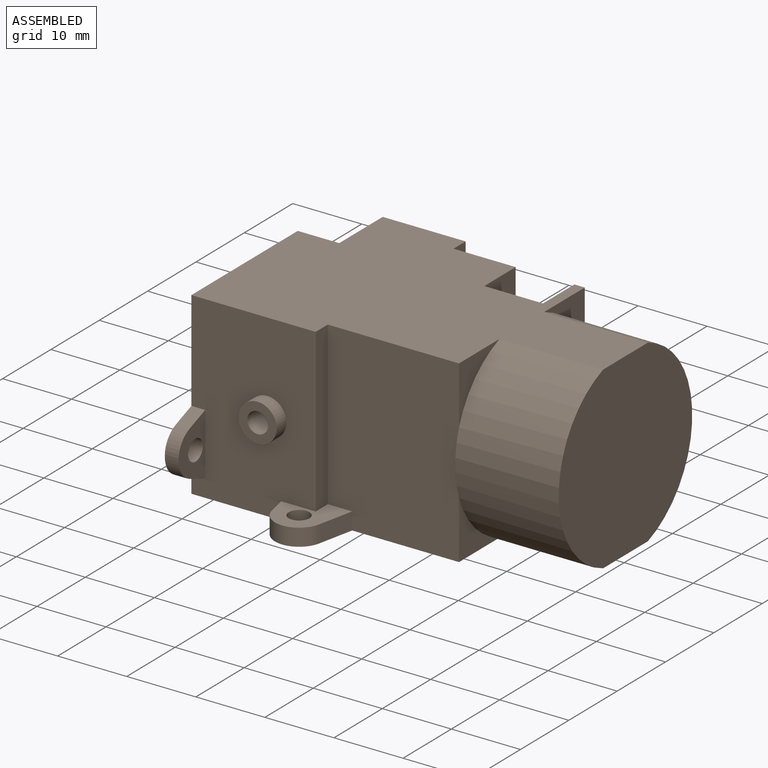
[diagram: assembled view]
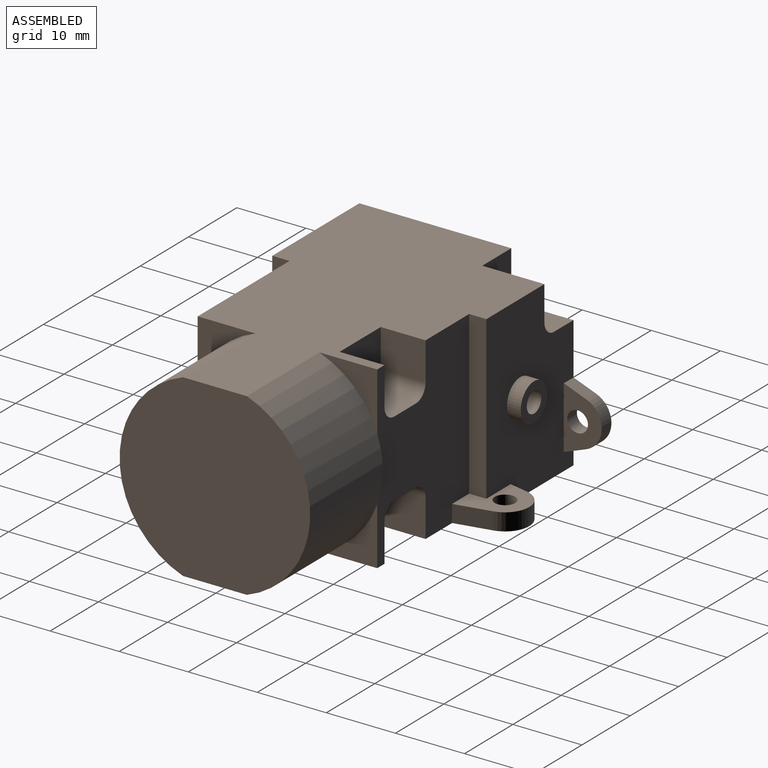
[diagram: assembled view, second angle]
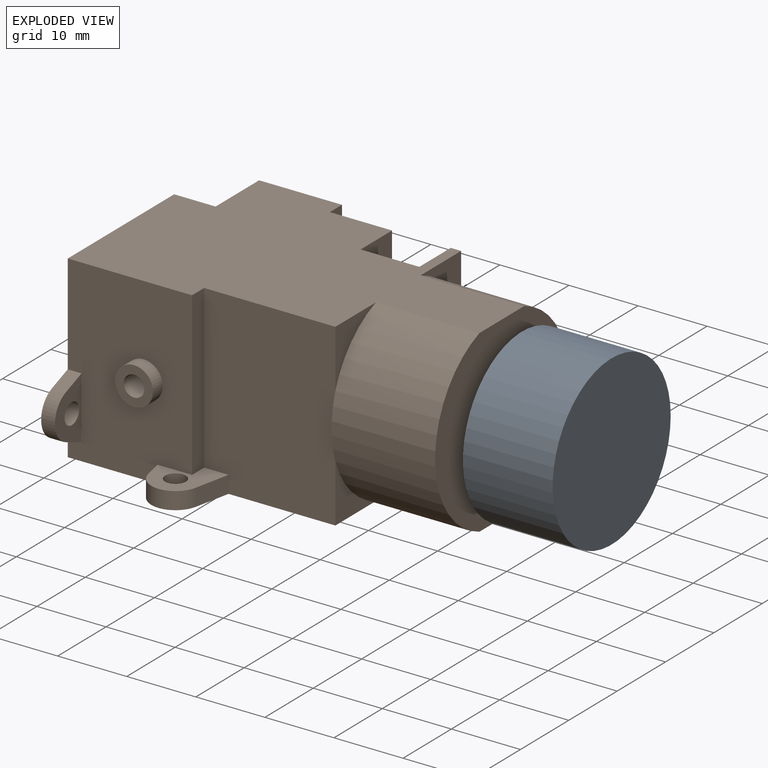
[diagram: exploded view]
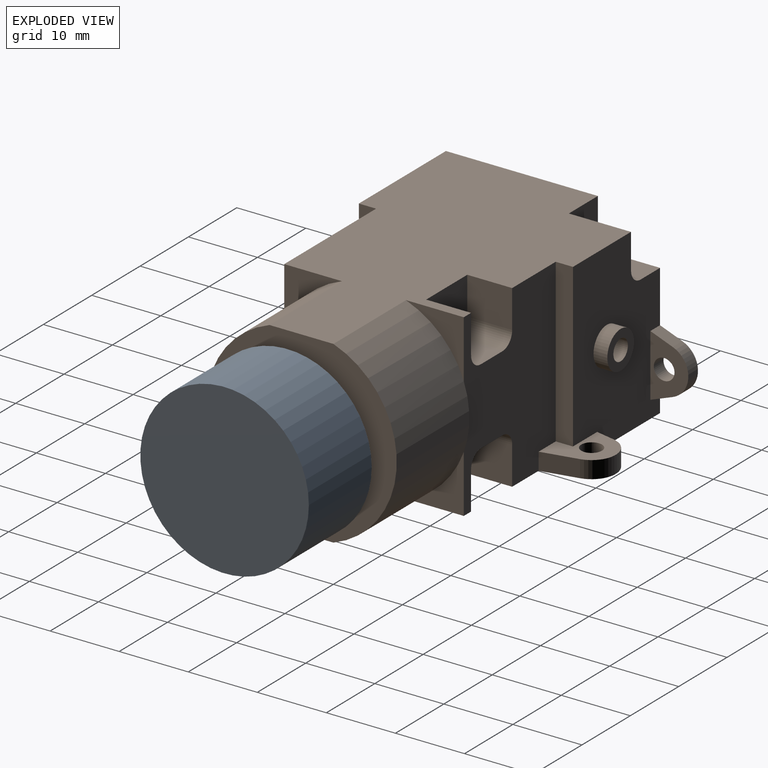
[diagram: exploded view, second angle]
ASSEMBLY  parts=2 mates=2
PART A: 3 faces, bbox 13x24.4x24.4 mm
  f0: cylinder r=12.2mm len=24.4mm, axis (-1,0,0), area 996.5mm2, adj f1,f2
  f1: plane 24.4x24.4mm, normal (1,0,0), area 467.6mm2, adj f0
  f2: plane 24.4x24.4mm, normal (-1,0,0), area 467.6mm2, adj f0
PART B: 62 faces, bbox 52x42x26 mm
  f0: plane 26x19mm, normal (0,1,0), area 361.1mm2, adj f1,f5,f8,f9,f10,f16,f27,f29
  f1: plane 52x31mm, normal (0,0,1), area 1081.7mm2, adj f0,f2,f3,f6,f7,f8,f10,f11
  f2: plane 26x18mm, normal (0,1,0), area 372.6mm2, adj f1,f7,f9,f10,f20,f28,f29,f32
  f3: plane 8.37x8.37mm, normal (1,0,0), area 24.4mm2, adj f1,f6,f15
  f4: plane 8.37x8.37mm, normal (1,0,0), area 24.4mm2, adj f6,f9,f15
  f5: plane 8.37x8.37mm, normal (1,0,0), area 24.4mm2, adj f0,f9,f14
  f6: plane 26x19mm, normal (0,-1,0), area 485.2mm2, adj f1,f3,f4,f9,f11,f13,f22,f25
  f7: plane 42x26mm, normal (-1,0,0), area 800.7mm2, adj f1,f2,f9,f12,f32,f33,f34,f35
  f8: plane 8.37x8.37mm, normal (1,0,0), area 24.4mm2, adj f0,f1,f14
  f9: plane 52x42mm, normal (0,0,-1), area 1206.7mm2, adj f0,f2,f4,f5,f6,f7,f12,f14
  f10: plane 23.5x2.5mm, normal (1,0,0), area 58.7mm2, adj f0,f1,f2,f29
  f11: plane 23.5x2.5mm, normal (1,0,0), area 58.7mm2, adj f1,f6,f12,f25
  f12: plane 26x18mm, normal (0,-1,0), area 413.7mm2, adj f1,f7,f9,f11,f18,f24,f25,f37
  f13: plane 9.26x0.8mm, normal (-1,0,0), area 5mm2, adj f6,f15
  f14: cylinder r=13.8mm len=26mm, axis (-1,0,0), area 508.7mm2, adj f1,f5,f8,f9,f16,f17
  f15: cylinder r=13.8mm len=26mm, axis (-1,0,0), area 508.7mm2, adj f1,f3,f4,f9,f13,f17
  f16: plane 9.26x0.8mm, normal (-1,0,0), area 5mm2, adj f0,f14
  f17: plane 27.6x26mm, normal (1,0,0), area 588.3mm2, adj f1,f9,f14,f15
  f18: cylinder r=2.75mm len=5.5mm, axis (0,1,0), area 34.6mm2, adj f12,f19
  f19: plane 5.5x5.5mm, normal (0,-1,0), area 16.7mm2, adj f18,f58
  f20: cylinder r=2.75mm len=5.5mm, axis (0,-1,0), area 34.6mm2, adj f2,f21
  f21: plane 5.5x5.5mm, normal (0,1,0), area 16.7mm2, adj f20,f58
  f22: plane 5.22x2.5mm, normal (0.98,-0.21,0), area 13.3mm2, adj f6,f9,f23,f25
  f23: cylinder r=3.5mm len=6.85mm, axis (0,0,-1), area 23.8mm2, adj f9,f22,f24,f25
  f24: plane 2.72x2.5mm, normal (-0.98,-0.21,0), area 7mm2, adj f9,f12,f23,f25
  f25: plane 8.53x8mm, normal (0,0,1), area 35.5mm2, adj f6,f11,f12,f22,f23,f24,f31
  f26: cylinder r=3.5mm len=6.85mm, axis (0,0,-1), area 23.8mm2, adj f9,f27,f28,f29
  f27: plane 5.22x2.5mm, normal (0.98,0.21,0), area 13.3mm2, adj f0,f9,f26,f29
  f28: plane 2.72x2.5mm, normal (-0.98,0.21,0), area 7mm2, adj f2,f9,f26,f29
  f29: plane 8.53x8mm, normal (0,0,1), area 35.5mm2, adj f0,f2,f10,f26,f27,f28,f30
  f30: cylinder r=1.5mm len=3mm, axis (0,0,-1), area 23.6mm2, adj f9,f29
  f31: cylinder r=1.5mm len=3mm, axis (0,0,-1), area 23.6mm2, adj f9,f25
  f32: plane 3.24x2mm, normal (0,0.35,0.94), area 6.9mm2, adj f2,f7,f33,f36
  f33: cylinder r=3.5mm len=6.55mm, axis (-1,0,0), area 16.9mm2, adj f7,f32,f34,f36
  f34: plane 3.24x2mm, normal (0,0.35,-0.94), area 6.9mm2, adj f2,f7,f33,f36
  f35: cylinder r=1.5mm len=3mm, axis (-1,0,0), area 18.8mm2, adj f7,f36
  f36: plane 9x5.5mm, normal (1,0,0), area 28.9mm2, adj f2,f32,f33,f34,f35
  f37: plane 3.24x2mm, normal (0,-0.35,-0.94), area 6.9mm2, adj f7,f12,f38,f41
  f38: cylinder r=3.5mm len=6.55mm, axis (-1,0,0), area 16.9mm2, adj f7,f37,f39,f41
  f39: plane 3.24x2mm, normal (0,-0.35,0.94), area 6.9mm2, adj f7,f12,f38,f41
  f40: cylinder r=1.5mm len=3mm, axis (-1,0,0), area 18.8mm2, adj f7,f41
  f41: plane 9x5.5mm, normal (1,0,0), area 28.9mm2, adj f12,f37,f38,f39,f40
  f42: plane 9x5mm, normal (-1,0,0), area 45mm2, adj f1,f2,f43,f45
  f43: cylinder r=2mm len=9mm, axis (0,1,0), area 28.3mm2, adj f2,f42,f44,f45
  f44: plane 9x4mm, normal (0,0,1), area 36mm2, adj f2,f7,f43,f45
  f45: plane 7x6mm, normal (0,1,0), area 41.1mm2, adj f1,f7,f42,f43,f44
  f46: plane 6.5x5.5mm, normal (1,0,0), area 35.8mm2, adj f0,f9,f47,f51
  f47: cylinder r=2mm len=6.5mm, axis (0,1,0), area 20.4mm2, adj f0,f46,f48,f51
  f48: plane 6.5x4.5mm, normal (0,0,-1), area 29.2mm2, adj f0,f47,f49,f51
  f49: cylinder r=2mm len=6.5mm, axis (0,1,0), area 20.4mm2, adj f0,f48,f50,f51
  f50: plane 6.5x5.5mm, normal (-1,0,0), area 35.8mm2, adj f0,f9,f49,f51
  f51: plane 8.5x7.5mm, normal (0,1,0), area 62mm2, adj f9,f46,f47,f48,f49,f50
  f52: plane 6.5x5.5mm, normal (1,0,0), area 35.8mm2, adj f0,f1,f56,f57
  f53: plane 6.5x5.5mm, normal (-1,0,0), area 35.8mm2, adj f0,f1,f54,f57
  f54: cylinder r=2mm len=6.5mm, axis (0,1,0), area 20.4mm2, adj f0,f53,f55,f57
  f55: plane 6.5x4.5mm, normal (0,0,1), area 29.2mm2, adj f0,f54,f56,f57
  f56: cylinder r=2mm len=6.5mm, axis (0,1,0), area 20.4mm2, adj f0,f52,f55,f57
  f57: plane 8.5x7.5mm, normal (0,1,0), area 62mm2, adj f1,f52,f53,f54,f55,f56
  f58: cylinder r=1.5mm len=35mm, axis (0,-1,0), area 329.9mm2, adj f19,f21
  f59: plane 24.5x24.5mm, normal (1,0,0), area 471.4mm2, adj f60
  f60: cylinder r=12.25mm len=24.5mm, axis (-1,0,0), area 1000.6mm2, adj f59,f61
  f61: plane 24.5x24.5mm, normal (-1,0,0), area 471.4mm2, adj f60
PLACE A t=(59.2,0,0)mm
PLACE B t=(59.2,0,0)mm
MATE planar B.f3 <-> A.f0  axis (1,0,0) through (85.2,-10.65,10.65)mm
MATE cylindrical B.f14 <-> A.f0  axis (1,0,0) through (100.2,0,0)mm
